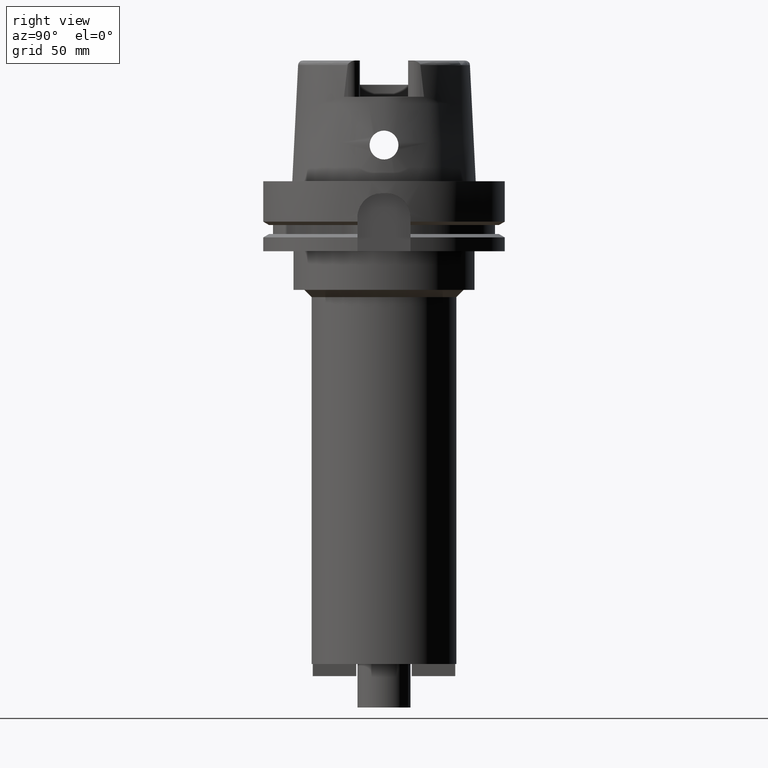
[diagram: clean part render]
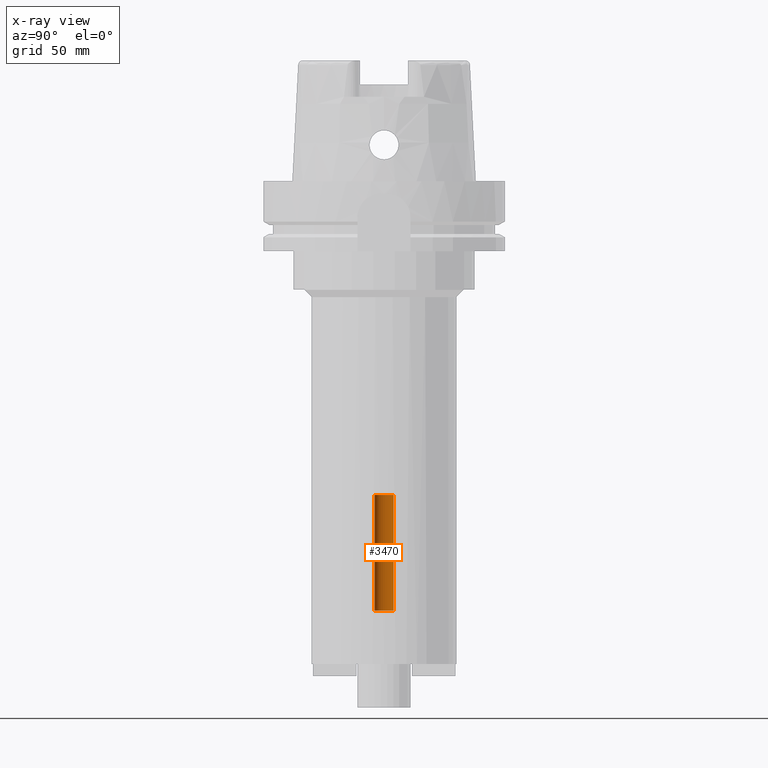
[diagram: x-ray — body ghosted, one internal face saturated and labeled with its STEP entity id]
A machine part, right view, then the same camera in x-ray: the body is ghosted and one INTERNAL B-rep face — a face not visible from any outside direction — is saturated and labeled: STEP entity #3470.
In plain terms, the highlighted cylindrical surface (edge-blend (fillet) strip) has radius 4 mm, axis along (0, 0, 1).
Its self-contained STEP definition (entity closure, byte-faithful):
#939=CARTESIAN_POINT('',(0.E0,0.E0,-1.3E2));
#940=DIRECTION('',(0.E0,0.E0,1.E0));
#941=DIRECTION('',(0.E0,1.E0,0.E0));
#942=AXIS2_PLACEMENT_3D('',#939,#940,#941);
#947=DIRECTION('',(0.E0,0.E0,1.E0));
#948=VECTOR('',#947,4.8E1);
#949=CARTESIAN_POINT('',(0.E0,4.E0,-1.78E2));
#950=LINE('',#949,#948);
#954=DIRECTION('',(0.E0,0.E0,1.E0));
#955=VECTOR('',#954,4.8E1);
#956=CARTESIAN_POINT('',(0.E0,-4.E0,-1.78E2));
#957=LINE('',#956,#955);
#977=CARTESIAN_POINT('',(0.E0,0.E0,-1.78E2));
#978=DIRECTION('',(0.E0,0.E0,-1.E0));
#979=DIRECTION('',(0.E0,-1.E0,0.E0));
#980=AXIS2_PLACEMENT_3D('',#977,#978,#979);
#2572=CARTESIAN_POINT('',(0.E0,-4.E0,-1.3E2));
#2573=CARTESIAN_POINT('',(0.E0,4.E0,-1.3E2));
#2574=VERTEX_POINT('',#2572);
#2575=VERTEX_POINT('',#2573);
#2576=CARTESIAN_POINT('',(0.E0,4.E0,-1.78E2));
#2577=VERTEX_POINT('',#2576);
#2578=CARTESIAN_POINT('',(0.E0,-4.E0,-1.78E2));
#2579=VERTEX_POINT('',#2578);
#3458=CARTESIAN_POINT('',(0.E0,0.E0,-2.314E2));
#3459=DIRECTION('',(0.E0,0.E0,1.E0));
#3460=DIRECTION('',(0.E0,1.E0,0.E0));
#3461=AXIS2_PLACEMENT_3D('',#3458,#3459,#3460);
#3462=CYLINDRICAL_SURFACE('',#3461,4.E0);
#3463=ORIENTED_EDGE('',*,*,#3448,.F.);
#3465=ORIENTED_EDGE('',*,*,#3464,.F.);
#3466=ORIENTED_EDGE('',*,*,#3451,.T.);
#3467=ORIENTED_EDGE('',*,*,#3438,.F.);
#3468=EDGE_LOOP('',(#3463,#3465,#3466,#3467));
#3469=FACE_OUTER_BOUND('',#3468,.F.);
#943=CIRCLE('',#942,4.E0);
#981=CIRCLE('',#980,4.E0);
#3438=EDGE_CURVE('',#2575,#2574,#943,.T.);
#3448=EDGE_CURVE('',#2577,#2575,#950,.T.);
#3451=EDGE_CURVE('',#2579,#2574,#957,.T.);
#3464=EDGE_CURVE('',#2579,#2577,#981,.T.);
#3470=ADVANCED_FACE('',(#3469),#3462,.F.);